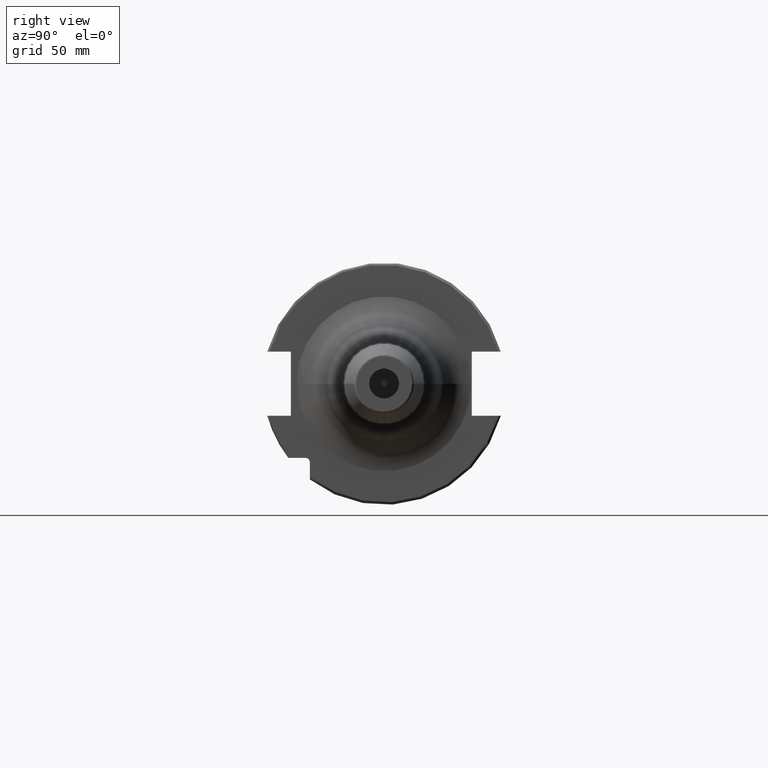
[diagram: clean part render]
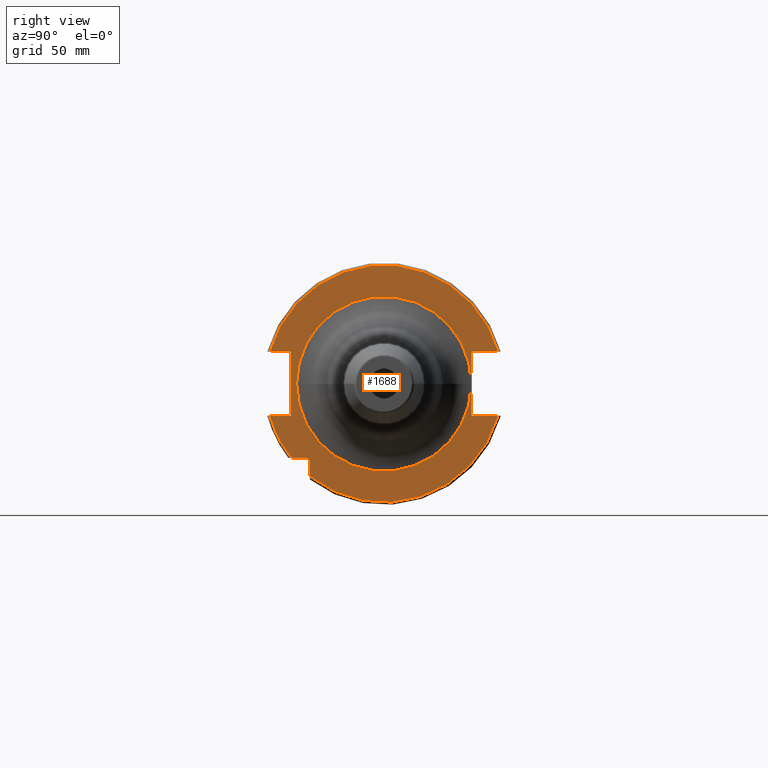
[diagram: same view with one face highlighted and labeled with its STEP entity id]
A machine part, right view. The second image highlights one B-rep face of the part: STEP entity #1688.
In plain terms, the highlighted planar face has unit normal (1, 0, 0).
Its self-contained STEP definition (entity closure, byte-faithful):
#126=DIRECTION('',(0.E0,0.E0,1.E0));
#127=VECTOR('',#126,5.653810627237E0);
#128=CARTESIAN_POINT('',(1.905E1,-2.985E1,-3.725381062724E1));
#129=LINE('',#128,#127);
#130=DIRECTION('',(0.E0,-1.E0,0.E0));
#131=VECTOR('',#130,5.653810627237E0);
#132=CARTESIAN_POINT('',(1.905E1,-3.16E1,-2.985E1));
#133=LINE('',#132,#131);
#134=DIRECTION('',(0.E0,1.E0,0.E0));
#135=VECTOR('',#134,8.461493733886E0);
#136=CARTESIAN_POINT('',(1.905E1,-4.596149373389E1,-1.29E1));
#137=LINE('',#136,#135);
#138=DIRECTION('',(0.E0,0.E0,1.E0));
#139=VECTOR('',#138,2.58E1);
#140=CARTESIAN_POINT('',(1.905E1,-3.75E1,-1.29E1));
#141=LINE('',#140,#139);
#142=DIRECTION('',(0.E0,1.E0,0.E0));
#143=VECTOR('',#142,8.461493733886E0);
#144=CARTESIAN_POINT('',(1.905E1,-4.596149373389E1,1.29E1));
#145=LINE('',#144,#143);
#146=DIRECTION('',(0.E0,-1.E0,0.E0));
#147=VECTOR('',#146,1.066149373389E1);
#148=CARTESIAN_POINT('',(1.905E1,4.596149373389E1,1.29E1));
#149=LINE('',#148,#147);
#150=DIRECTION('',(0.E0,0.E0,-1.E0));
#151=VECTOR('',#150,2.58E1);
#152=CARTESIAN_POINT('',(1.905E1,3.53E1,1.29E1));
#153=LINE('',#152,#151);
#154=DIRECTION('',(0.E0,-1.E0,0.E0));
#155=VECTOR('',#154,1.066149373389E1);
#156=CARTESIAN_POINT('',(1.905E1,4.596149373389E1,-1.29E1));
#157=LINE('',#156,#155);
#158=CARTESIAN_POINT('',(1.905E1,0.E0,0.E0));
#159=DIRECTION('',(1.E0,0.E0,0.E0));
#160=DIRECTION('',(0.E0,-1.E0,0.E0));
#161=AXIS2_PLACEMENT_3D('',#158,#159,#160);
#163=CARTESIAN_POINT('',(1.905E1,0.E0,0.E0));
#164=DIRECTION('',(1.E0,0.E0,0.E0));
#165=DIRECTION('',(0.E0,1.E0,0.E0));
#166=AXIS2_PLACEMENT_3D('',#163,#164,#165);
#172=CARTESIAN_POINT('',(1.905E1,-3.16E1,-3.16E1));
#173=DIRECTION('',(-1.E0,0.E0,0.E0));
#174=DIRECTION('',(0.E0,0.E0,1.E0));
#175=AXIS2_PLACEMENT_3D('',#172,#173,#174);
#545=CARTESIAN_POINT('',(1.905E1,0.E0,0.E0));
#546=DIRECTION('',(1.E0,0.E0,0.E0));
#547=DIRECTION('',(0.E0,9.627964123359E-1,2.702278083268E-1));
#548=AXIS2_PLACEMENT_3D('',#545,#546,#547);
#844=CARTESIAN_POINT('',(1.905E1,0.E0,0.E0));
#845=DIRECTION('',(-1.E0,0.E0,0.E0));
#846=DIRECTION('',(0.E0,9.627964123359E-1,-2.702278083268E-1));
#847=AXIS2_PLACEMENT_3D('',#844,#845,#846);
#860=CARTESIAN_POINT('',(1.905E1,0.E0,0.E0));
#861=DIRECTION('',(-1.E0,0.E0,0.E0));
#862=DIRECTION('',(0.E0,-7.803888060170E-1,-6.252945797329E-1));
#863=AXIS2_PLACEMENT_3D('',#860,#861,#862);
#874=CARTESIAN_POINT('',(1.905E1,-3.725381062724E1,-2.985E1));
#1348=CARTESIAN_POINT('',(1.905E1,4.596149373389E1,1.29E1));
#1349=CARTESIAN_POINT('',(1.905E1,3.53E1,1.29E1));
#1350=VERTEX_POINT('',#1348);
#1351=VERTEX_POINT('',#1349);
#1352=CARTESIAN_POINT('',(1.905E1,3.53E1,-1.29E1));
#1353=VERTEX_POINT('',#1352);
#1354=CARTESIAN_POINT('',(1.905E1,4.596149373389E1,-1.29E1));
#1355=VERTEX_POINT('',#1354);
#1356=CARTESIAN_POINT('',(1.905E1,-4.596149373389E1,-1.29E1));
#1357=CARTESIAN_POINT('',(1.905E1,-3.75E1,-1.29E1));
#1358=VERTEX_POINT('',#1356);
#1359=VERTEX_POINT('',#1357);
#1360=CARTESIAN_POINT('',(1.905E1,-3.75E1,1.29E1));
#1361=VERTEX_POINT('',#1360);
#1362=CARTESIAN_POINT('',(1.905E1,-4.596149373389E1,1.29E1));
#1363=VERTEX_POINT('',#1362);
#1417=CARTESIAN_POINT('',(1.905E1,-2.985E1,-3.725381062724E1));
#1418=VERTEX_POINT('',#1417);
#1425=CARTESIAN_POINT('',(1.905E1,-3.16E1,-2.985E1));
#1426=CARTESIAN_POINT('',(1.905E1,-2.985E1,-3.16E1));
#1427=VERTEX_POINT('',#1425);
#1428=VERTEX_POINT('',#1426);
#1450=VERTEX_POINT('',#874);
#1472=CARTESIAN_POINT('',(1.905E1,-3.517539125994E1,-1.444457744557E-13));
#1473=CARTESIAN_POINT('',(1.905E1,3.517539125994E1,1.401380314242E-13));
#1474=VERTEX_POINT('',#1472);
#1475=VERTEX_POINT('',#1473);
#1652=CARTESIAN_POINT('',(1.905E1,0.E0,0.E0));
#1653=DIRECTION('',(1.E0,0.E0,0.E0));
#1654=DIRECTION('',(0.E0,-1.E0,0.E0));
#1655=AXIS2_PLACEMENT_3D('',#1652,#1653,#1654);
#1656=PLANE('',#1655);
#1658=ORIENTED_EDGE('',*,*,#1657,.T.);
#1660=ORIENTED_EDGE('',*,*,#1659,.F.);
#1662=ORIENTED_EDGE('',*,*,#1661,.T.);
#1664=ORIENTED_EDGE('',*,*,#1663,.T.);
#1666=ORIENTED_EDGE('',*,*,#1665,.T.);
#1668=ORIENTED_EDGE('',*,*,#1667,.T.);
#1670=ORIENTED_EDGE('',*,*,#1669,.F.);
#1672=ORIENTED_EDGE('',*,*,#1671,.F.);
#1674=ORIENTED_EDGE('',*,*,#1673,.T.);
#1675=ORIENTED_EDGE('',*,*,#1636,.T.);
#1677=ORIENTED_EDGE('',*,*,#1676,.F.);
#1679=ORIENTED_EDGE('',*,*,#1678,.T.);
#1680=EDGE_LOOP('',(#1658,#1660,#1662,#1664,#1666,#1668,#1670,#1672,#1674,#1675,
#1677,#1679));
#1681=FACE_OUTER_BOUND('',#1680,.F.);
#1683=ORIENTED_EDGE('',*,*,#1682,.T.);
#1685=ORIENTED_EDGE('',*,*,#1684,.T.);
#1686=EDGE_LOOP('',(#1683,#1685));
#1687=FACE_BOUND('',#1686,.F.);
#1688=ADVANCED_FACE('',(#1681,#1687),#1656,.T.);
#162=CIRCLE('',#161,3.517539125994E1);
#167=CIRCLE('',#166,3.517539125994E1);
#176=CIRCLE('',#175,1.75E0);
#549=CIRCLE('',#548,4.77375E1);
#848=CIRCLE('',#847,4.77375E1);
#864=CIRCLE('',#863,4.77375E1);
#1636=EDGE_CURVE('',#1351,#1353,#153,.T.);
#1657=EDGE_CURVE('',#1418,#1428,#129,.T.);
#1659=EDGE_CURVE('',#1427,#1428,#176,.T.);
#1661=EDGE_CURVE('',#1427,#1450,#133,.T.);
#1663=EDGE_CURVE('',#1450,#1358,#864,.T.);
#1665=EDGE_CURVE('',#1358,#1359,#137,.T.);
#1667=EDGE_CURVE('',#1359,#1361,#141,.T.);
#1669=EDGE_CURVE('',#1363,#1361,#145,.T.);
#1671=EDGE_CURVE('',#1350,#1363,#549,.T.);
#1673=EDGE_CURVE('',#1350,#1351,#149,.T.);
#1676=EDGE_CURVE('',#1355,#1353,#157,.T.);
#1678=EDGE_CURVE('',#1355,#1418,#848,.T.);
#1682=EDGE_CURVE('',#1474,#1475,#162,.T.);
#1684=EDGE_CURVE('',#1475,#1474,#167,.T.);